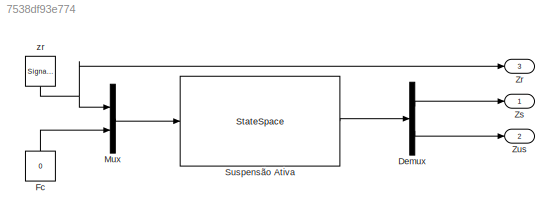
MODEL slx_7538df93e774
KIND model
CONFIG AbsTol = auto
CONFIG FixedStep = auto
CONFIG MaxStep = auto
CONFIG MinStep = auto
CONFIG RelTol = 1e-3
CONFIG SampleTimeConstraint = Unconstrained
CONFIG Solver = ode23t
CONFIG SolverMode = Auto
CONFIG SolverName = ode23t
CONFIG StartTime = 0.0
CONFIG StopTime = 10.0
BLOCK [Demux] Demux
  DisplayOption = bar
  Outputs = 2
  Ports = [1, 2]
BLOCK [Constant] Fc
  Value = 0
BLOCK [Mux] Mux
  DisplayOption = bar
  Inputs = 2
  Ports = [2, 1]
BLOCK [StateSpace] Suspensão Ativa
  A = [1 0 0 0; -367.346938775510 -3.06122448979592 367.346938775510 3.06122448979592; 0 0 1 0; 900 7.50000000000000 -2150 -12.5000000000000]
  B = [0 0; 0 0.408163265306122; 0 0; 1250 -1]
  C = [1 0 0 0; 0 0 1 0]
  D = [0 0; 0 0]
  Ports = [1, 1]
  X0 = 0
BLOCK [Outport] Zr
  IconDisplay = Port number
  Port = 3
BLOCK [Outport] Zs
  IconDisplay = Port number
BLOCK [Outport] Zus
  IconDisplay = Port number
  Port = 2
BLOCK [SignalGenerator] zr
  Amplitude = -0.01
  Frequency = 0.3
  Ports = [0, 1]
  WaveForm = square
LINE Demux:1 -> Zs:1
LINE Demux:2 -> Zus:1
LINE Fc:1 -> Mux:2
LINE Mux:1 -> Suspensão Ativa:1
LINE Suspensão Ativa:1 -> Demux:1
NET zr:1 -> Mux:1, Zr:1
note: NET lines group one-source signal fan-out (src -> all destinations, sorted); 1:1 wires keep LINE
